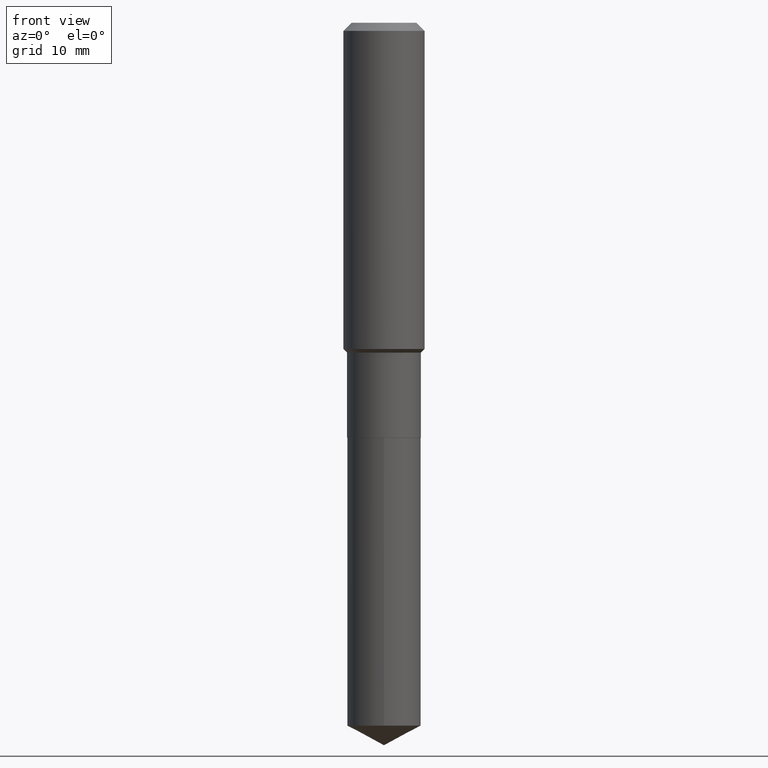
[diagram: clean part render]
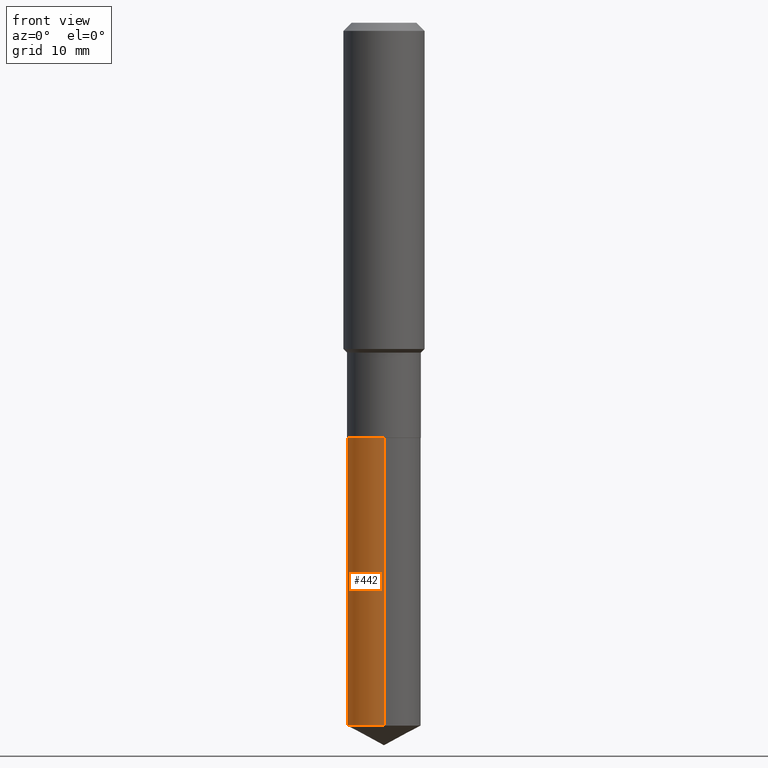
[diagram: same view with one face highlighted and labeled with its STEP entity id]
A machine part, front view. The second image highlights one B-rep face of the part: STEP entity #442.
In plain terms, the highlighted cylindrical surface (partial cylindrical patch) has radius 4.5504 mm, axis along (-0, 0, 1).
Its self-contained STEP definition (entity closure, byte-faithful):
#8 = VERTEX_POINT ( 'NONE', #206 ) ;
#30 = ORIENTED_EDGE ( 'NONE', *, *, #293, .F. ) ;
#38 = FACE_OUTER_BOUND ( 'NONE', #270, .T. ) ;
#42 = DIRECTION ( 'NONE',  ( -2.445568839554977058E-29, 3.491338085363987915E-15, 1.000000000000000000 ) ) ;
#48 = ORIENTED_EDGE ( 'NONE', *, *, #260, .T. ) ;
#50 = CARTESIAN_POINT ( 'NONE',  ( 8.335872928799957267E-29, -1.190101770539773330E-14, -3.408644255317845762 ) ) ;
#88 = AXIS2_PLACEMENT_3D ( 'NONE', #50, #164, #209 ) ;
#89 = AXIS2_PLACEMENT_3D ( 'NONE', #192, #277, #318 ) ;
#90 = CYLINDRICAL_SURFACE ( 'NONE', #89, 0.1791500000000000314 ) ;
#96 = AXIS2_PLACEMENT_3D ( 'NONE', #423, #103, #228 ) ;
#103 = DIRECTION ( 'NONE',  ( -2.445568839554976778E-29, 3.491338085363988309E-15, 1.000000000000000000 ) ) ;
#148 = DIRECTION ( 'NONE',  ( -2.445568839554977058E-29, 3.491338085363987915E-15, 1.000000000000000000 ) ) ;
#154 = ORIENTED_EDGE ( 'NONE', *, *, #202, .F. ) ;
#164 = DIRECTION ( 'NONE',  ( -2.445568839554976778E-29, 3.491338085363988309E-15, 1.000000000000000000 ) ) ;
#174 = CIRCLE ( 'NONE', #96, 0.1791500000000000314 ) ;
#192 = CARTESIAN_POINT ( 'NONE',  ( 4.919794144283257255E-29, -7.024162157484639438E-15, -2.011800000000000033 ) ) ;
#193 = VERTEX_POINT ( 'NONE', #311 ) ;
#202 = EDGE_CURVE ( 'NONE', #372, #193, #265, .T. ) ;
#203 = LINE ( 'NONE', #467, #296 ) ;
#206 = CARTESIAN_POINT ( 'NONE',  ( -1.250997763707411198E-15, -0.1791500000000119386, -3.408644255317845317 ) ) ;
#207 = CARTESIAN_POINT ( 'NONE',  ( 1.272937311114302931E-15, 0.1791499999999880965, -3.408644255317846206 ) ) ;
#209 = DIRECTION ( 'NONE',  ( -6.982962677686265133E-15, -1.000000000000000000, 3.049788438363675772E-15 ) ) ;
#212 = CARTESIAN_POINT ( 'NONE',  ( -1.250997763707445513E-15, -0.1791500000000070536, -2.011799999999999145 ) ) ;
#228 = DIRECTION ( 'NONE',  ( -6.982962677686265133E-15, -1.000000000000000000, 3.049788438363675772E-15 ) ) ;
#260 = EDGE_CURVE ( 'NONE', #8, #464, #203, .T. ) ;
#262 = EDGE_CURVE ( 'NONE', #372, #8, #317, .T. ) ;
#265 = LINE ( 'NONE', #340, #303 ) ;
#270 = EDGE_LOOP ( 'NONE', ( #154, #485, #48, #30 ) ) ;
#277 = DIRECTION ( 'NONE',  ( -2.445568839554976778E-29, 3.491338085363988309E-15, 1.000000000000000000 ) ) ;
#293 = EDGE_CURVE ( 'NONE', #193, #464, #174, .T. ) ;
#296 = VECTOR ( 'NONE', #42, 39.37007874015748143 ) ;
#303 = VECTOR ( 'NONE', #148, 39.37007874015748143 ) ;
#311 = CARTESIAN_POINT ( 'NONE',  ( 1.272937311114303128E-15, 0.1791499999999929815, -2.011800000000000477 ) ) ;
#317 = CIRCLE ( 'NONE', #88, 0.1791500000000000314 ) ;
#318 = DIRECTION ( 'NONE',  ( -6.982962677686265133E-15, -1.000000000000000000, 3.049788438363675772E-15 ) ) ;
#340 = CARTESIAN_POINT ( 'NONE',  ( 1.272937311114268616E-15, 0.1791499999999929815, -2.011800000000000477 ) ) ;
#372 = VERTEX_POINT ( 'NONE', #207 ) ;
#423 = CARTESIAN_POINT ( 'NONE',  ( 4.919794144283257255E-29, -7.024162157484639438E-15, -2.011800000000000033 ) ) ;
#442 = ADVANCED_FACE ( 'NONE', ( #38 ), #90, .T. ) ;
#464 = VERTEX_POINT ( 'NONE', #212 ) ;
#467 = CARTESIAN_POINT ( 'NONE',  ( -1.250997763707445513E-15, -0.1791500000000070536, -2.011799999999999145 ) ) ;
#485 = ORIENTED_EDGE ( 'NONE', *, *, #262, .T. ) ;